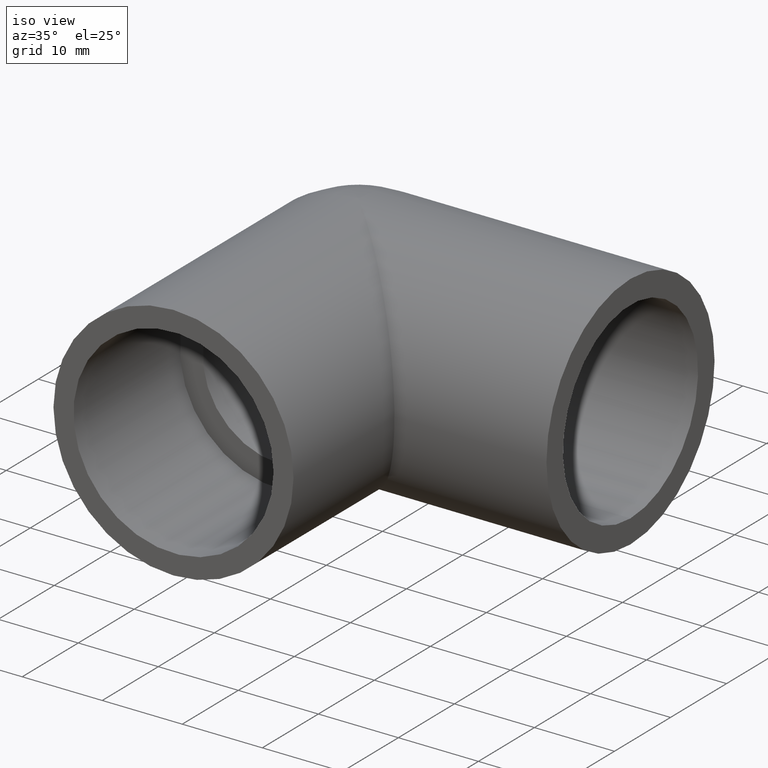
[diagram: clean part render]
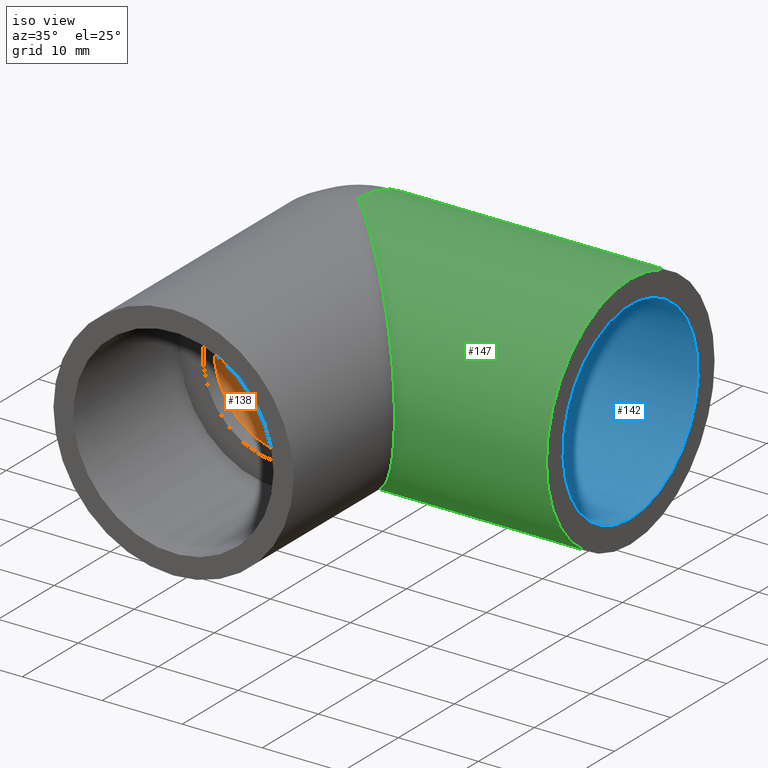
[diagram: same view with three faces highlighted in distinct colors, each labeled with its STEP entity id]
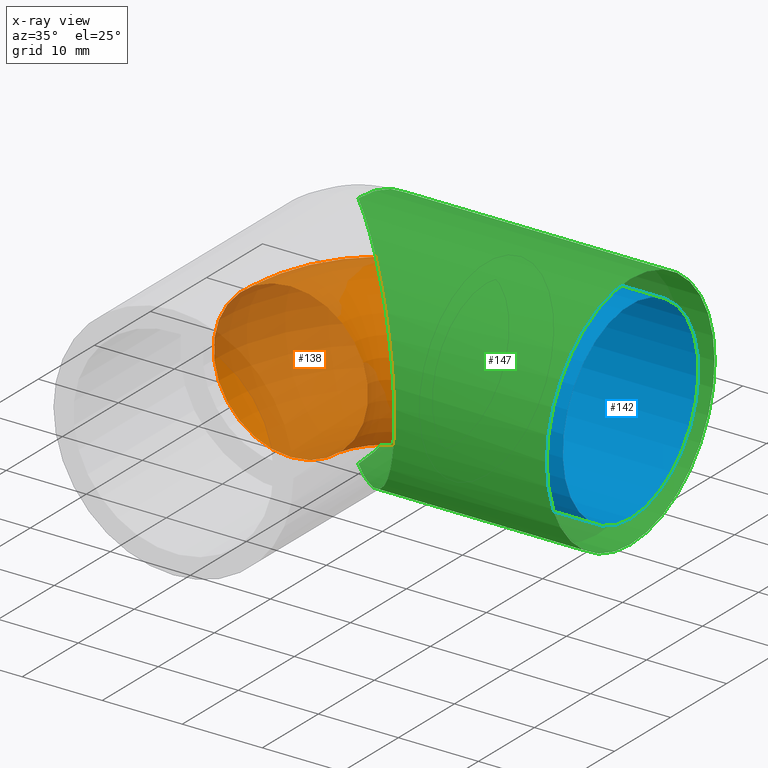
[diagram: x-ray of the same camera — body ghosted, the three highlighted faces saturated]
A machine part, iso view with three faces highlighted in distinct colors.
The next image is the same camera in x-ray (body ghosted, the three faces saturated) — at least one of them is partly hidden behind the body in this view.
Their STEP definitions:

[orange] entity #138 — the highlighted toroidal blend (fillet) surface has major radius 12.0585 mm and minor (blend) radius 9.6468 mm.
#21=TOROIDAL_SURFACE('',#154,12.0585,9.6468);
#23=FACE_BOUND('',#48,.T.);
#34=FACE_OUTER_BOUND('',#47,.T.);
#47=EDGE_LOOP('',(#107));
#48=EDGE_LOOP('',(#108));
#69=CIRCLE('',#153,9.6468);
#70=CIRCLE('',#155,9.6468);
#81=VERTEX_POINT('',#232);
#82=VERTEX_POINT('',#235);
#93=EDGE_CURVE('',#81,#81,#69,.T.);
#94=EDGE_CURVE('',#82,#82,#70,.T.);
#107=ORIENTED_EDGE('',*,*,#93,.T.);
#108=ORIENTED_EDGE('',*,*,#94,.F.);
#138=ADVANCED_FACE('',(#34,#23),#21,.F.);
#153=AXIS2_PLACEMENT_3D('',#233,#182,#183);
#154=AXIS2_PLACEMENT_3D('',#234,#184,#185);
#155=AXIS2_PLACEMENT_3D('',#236,#186,#187);
#182=DIRECTION('center_axis',(-2.83276944882399E-16,-1.,0.));
#183=DIRECTION('ref_axis',(0.,0.,1.));
#184=DIRECTION('center_axis',(0.,0.,1.));
#185=DIRECTION('ref_axis',(1.,0.,0.));
#186=DIRECTION('center_axis',(-1.,0.,0.));
#187=DIRECTION('ref_axis',(0.,0.,1.));
#232=CARTESIAN_POINT('',(3.2668216029179E-15,-12.0585,-9.6468));
#233=CARTESIAN_POINT('Origin',(4.44821387711936E-15,-12.0585,0.));
#234=CARTESIAN_POINT('Origin',(12.0585,-12.0585,0.));
#235=CARTESIAN_POINT('',(12.0585,1.17407049558273E-15,-9.6468));
#236=CARTESIAN_POINT('Origin',(12.0585,-7.32177861873785E-18,0.));

[blue] entity #142 — the highlighted cylindrical surface (bore or boss wall) has radius 12.0585 mm, axis along (-1, 0, 0).
#27=FACE_BOUND('',#56,.T.);
#38=FACE_OUTER_BOUND('',#55,.T.);
#55=EDGE_LOOP('',(#115));
#56=EDGE_LOOP('',(#116));
#74=CIRCLE('',#163,12.0585);
#75=CIRCLE('',#164,12.0585);
#86=VERTEX_POINT('',#247);
#87=VERTEX_POINT('',#249);
#98=EDGE_CURVE('',#86,#86,#74,.T.);
#99=EDGE_CURVE('',#87,#87,#75,.T.);
#115=ORIENTED_EDGE('',*,*,#98,.T.);
#116=ORIENTED_EDGE('',*,*,#99,.F.);
#134=CYLINDRICAL_SURFACE('',#162,12.0585);
#142=ADVANCED_FACE('',(#38,#27),#134,.F.);
#162=AXIS2_PLACEMENT_3D('',#246,#200,#201);
#163=AXIS2_PLACEMENT_3D('',#248,#202,#203);
#164=AXIS2_PLACEMENT_3D('',#250,#204,#205);
#200=DIRECTION('center_axis',(-1.,0.,0.));
#201=DIRECTION('ref_axis',(0.,0.,1.));
#202=DIRECTION('center_axis',(-1.,0.,0.));
#203=DIRECTION('ref_axis',(0.,0.,1.));
#204=DIRECTION('center_axis',(-1.,0.,0.));
#205=DIRECTION('ref_axis',(0.,0.,1.));
#246=CARTESIAN_POINT('Origin',(34.,0.,0.));
#247=CARTESIAN_POINT('',(16.,1.47674034275184E-15,-12.0585));
#248=CARTESIAN_POINT('Origin',(16.,0.,0.));
#249=CARTESIAN_POINT('',(34.,1.47674034275184E-15,-12.0585));
#250=CARTESIAN_POINT('Origin',(34.,0.,0.));

[green] entity #147 — the highlighted cylindrical surface (bore or boss wall) has radius 15 mm, axis along (1, 0, 0).
#15=ELLIPSE('',#171,21.2132034355964,15.);
#31=FACE_BOUND('',#65,.T.);
#43=FACE_OUTER_BOUND('',#64,.T.);
#64=EDGE_LOOP('',(#126,#127));
#65=EDGE_LOOP('',(#128));
#76=CIRCLE('',#167,15.);
#79=CIRCLE('',#174,15.);
#88=VERTEX_POINT('',#253);
#89=VERTEX_POINT('',#254);
#91=VERTEX_POINT('',#263);
#100=EDGE_CURVE('',#88,#89,#76,.T.);
#103=EDGE_CURVE('',#89,#88,#15,.T.);
#104=EDGE_CURVE('',#91,#91,#79,.T.);
#126=ORIENTED_EDGE('',*,*,#103,.T.);
#127=ORIENTED_EDGE('',*,*,#100,.T.);
#128=ORIENTED_EDGE('',*,*,#104,.F.);
#136=CYLINDRICAL_SURFACE('',#173,15.);
#147=ADVANCED_FACE('',(#43,#31),#136,.T.);
#167=AXIS2_PLACEMENT_3D('',#255,#210,#211);
#171=AXIS2_PLACEMENT_3D('',#260,#218,#219);
#173=AXIS2_PLACEMENT_3D('',#262,#222,#223);
#174=AXIS2_PLACEMENT_3D('',#264,#224,#225);
#210=DIRECTION('center_axis',(1.,0.,0.));
#211=DIRECTION('ref_axis',(0.,0.,-1.));
#218=DIRECTION('center_axis',(0.707106781186547,0.707106781186548,0.));
#219=DIRECTION('ref_axis',(-0.707106781186548,0.707106781186547,0.));
#222=DIRECTION('center_axis',(1.,0.,0.));
#223=DIRECTION('ref_axis',(0.,1.,0.));
#224=DIRECTION('center_axis',(1.,0.,0.));
#225=DIRECTION('ref_axis',(0.,0.,-1.));
#253=CARTESIAN_POINT('',(-5.51091059616309E-15,-4.49927934798557E-31,-15.));
#254=CARTESIAN_POINT('',(-5.51091059616309E-15,-4.49927934798557E-31,15.));
#255=CARTESIAN_POINT('Origin',(-4.44089209850063E-15,0.,0.));
#260=CARTESIAN_POINT('Origin',(0.,0.,0.));
#262=CARTESIAN_POINT('Origin',(17.,0.,0.));
#263=CARTESIAN_POINT('',(34.,15.,0.));
#264=CARTESIAN_POINT('Origin',(34.,0.,0.));